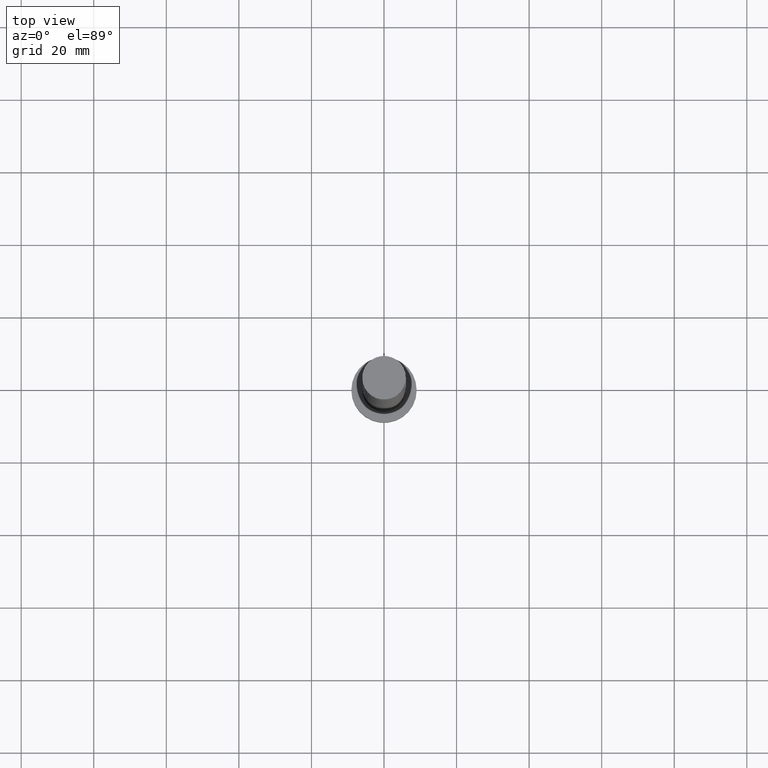
[diagram: clean part render]
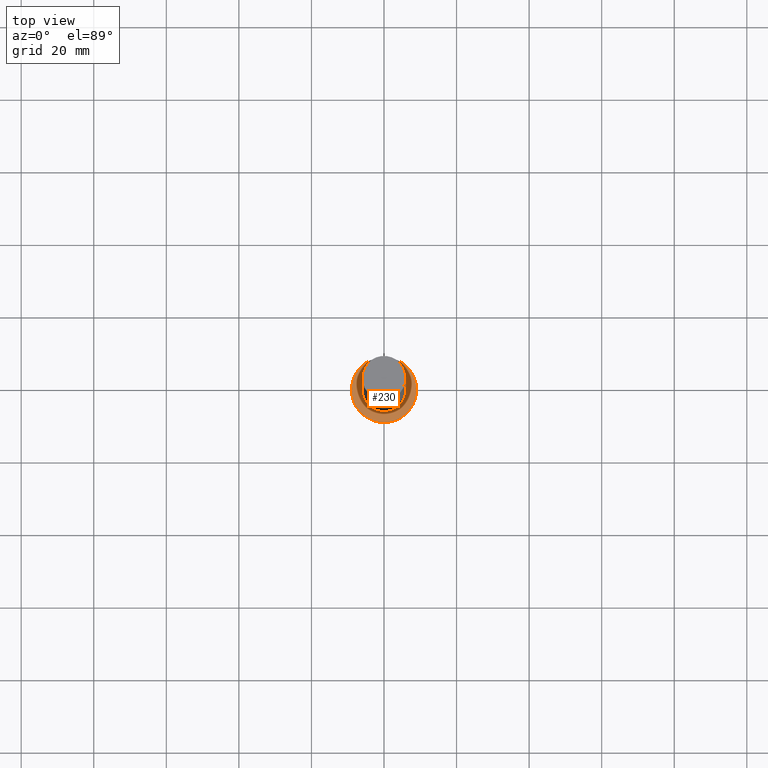
[diagram: same view with one face highlighted and labeled with its STEP entity id]
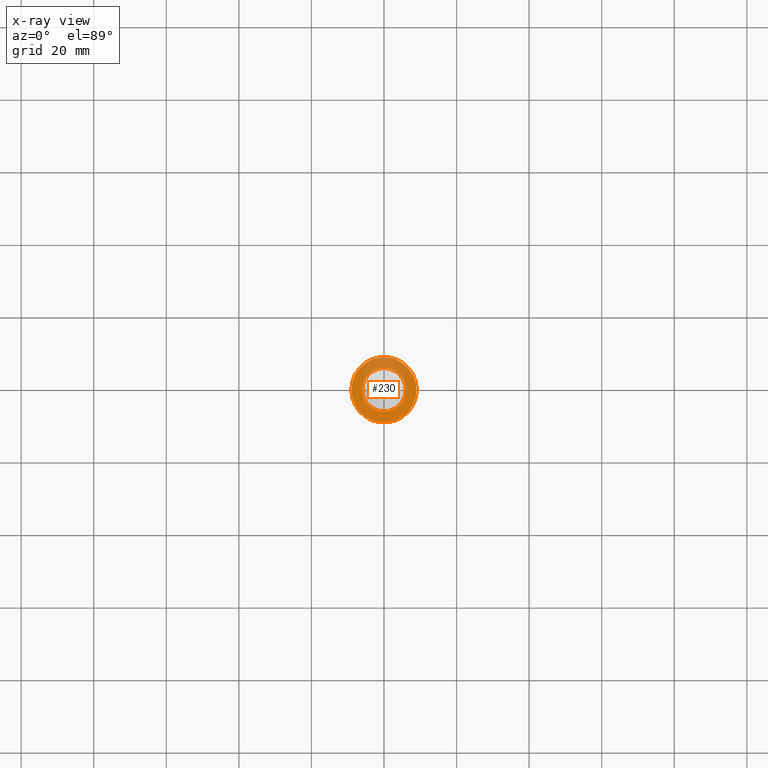
[diagram: x-ray of the same camera — body ghosted, the highlighted face saturated]
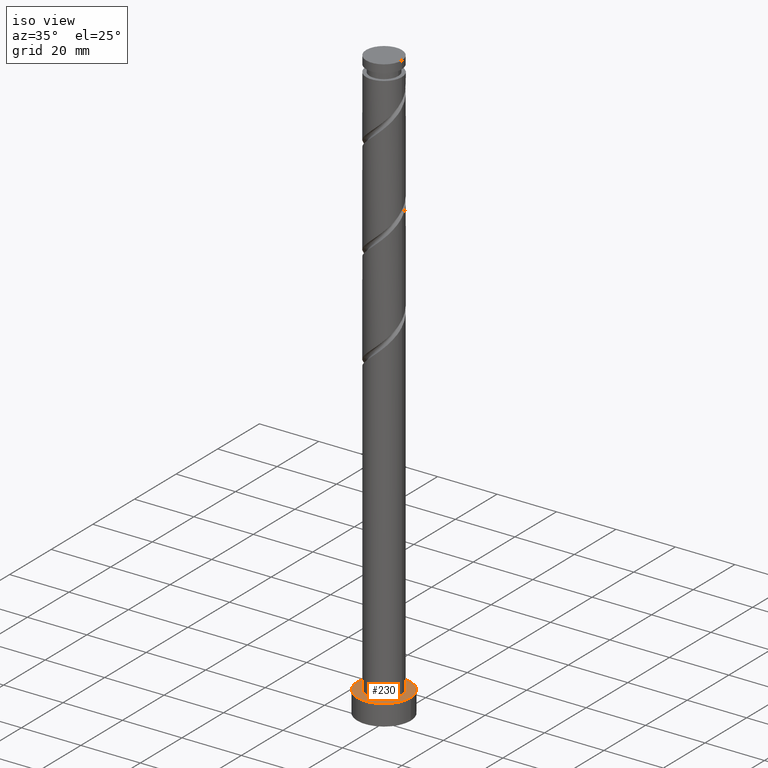
[diagram: same view with one face highlighted and labeled with its STEP entity id]
A machine part, top view. The second image highlights one B-rep face of the part: STEP entity #230.
The next image is the same camera in x-ray: the body ghosted, the highlighted face saturated — about 28% of this face is hidden behind the body in this view.
A second angle (iso view) of the same face is appended — the face is thin or edge-on in the first view.
In plain terms, the highlighted planar face has unit normal (0, 0, 1).
Its self-contained STEP definition (entity closure, byte-faithful):
#2 = CARTESIAN_POINT ( 'NONE',  ( 0.000000000000000000, 0.000000000000000000, 7.000000000000000000 ) ) ;
#64 = DIRECTION ( 'NONE',  ( 1.000000000000000000, 0.000000000000000000, 0.000000000000000000 ) ) ;
#65 = DIRECTION ( 'NONE',  ( 0.000000000000000000, 0.000000000000000000, 1.000000000000000000 ) ) ;
#107 = DIRECTION ( 'NONE',  ( 1.000000000000000000, 0.000000000000000000, 0.000000000000000000 ) ) ;
#146 = ORIENTED_EDGE ( 'NONE', *, *, #1597, .T. ) ;
#149 = AXIS2_PLACEMENT_3D ( 'NONE', #713, #65, #1677 ) ;
#153 = CARTESIAN_POINT ( 'NONE',  ( 6.000000000000000888, 7.347880794884120722E-16, 7.000000000000000000 ) ) ;
#160 = CIRCLE ( 'NONE', #1707, 6.000000000000000888 ) ;
#186 = CIRCLE ( 'NONE', #1519, 6.000000000000000888 ) ;
#230 = ADVANCED_FACE ( 'NONE', ( #702, #1654 ), #446, .T. ) ;
#346 = DIRECTION ( 'NONE',  ( 1.000000000000000000, 0.000000000000000000, 0.000000000000000000 ) ) ;
#446 = PLANE ( 'NONE',  #149 ) ;
#530 = EDGE_CURVE ( 'NONE', #1596, #830, #160, .T. ) ;
#548 = EDGE_LOOP ( 'NONE', ( #912, #651 ) ) ;
#636 = VERTEX_POINT ( 'NONE', #668 ) ;
#651 = ORIENTED_EDGE ( 'NONE', *, *, #1188, .F. ) ;
#668 = CARTESIAN_POINT ( 'NONE',  ( -9.000000000000000000, 0.000000000000000000, 7.000000000000000000 ) ) ;
#702 = FACE_BOUND ( 'NONE', #548, .T. ) ;
#713 = CARTESIAN_POINT ( 'NONE',  ( 0.000000000000000000, 0.000000000000000000, 7.000000000000000000 ) ) ;
#728 = DIRECTION ( 'NONE',  ( 0.000000000000000000, 0.000000000000000000, 1.000000000000000000 ) ) ;
#830 = VERTEX_POINT ( 'NONE', #153 ) ;
#885 = CARTESIAN_POINT ( 'NONE',  ( 0.000000000000000000, 0.000000000000000000, 7.000000000000000000 ) ) ;
#912 = ORIENTED_EDGE ( 'NONE', *, *, #530, .F. ) ;
#951 = DIRECTION ( 'NONE',  ( 0.000000000000000000, 0.000000000000000000, 1.000000000000000000 ) ) ;
#971 = DIRECTION ( 'NONE',  ( 0.000000000000000000, 0.000000000000000000, 1.000000000000000000 ) ) ;
#981 = DIRECTION ( 'NONE',  ( 1.000000000000000000, 0.000000000000000000, 0.000000000000000000 ) ) ;
#1009 = DIRECTION ( 'NONE',  ( 0.000000000000000000, 0.000000000000000000, 1.000000000000000000 ) ) ;
#1096 = CIRCLE ( 'NONE', #1209, 9.000000000000000000 ) ;
#1154 = ORIENTED_EDGE ( 'NONE', *, *, #1293, .T. ) ;
#1188 = EDGE_CURVE ( 'NONE', #830, #1596, #186, .T. ) ;
#1198 = CARTESIAN_POINT ( 'NONE',  ( 9.000000000000000000, 1.102182119232617714E-15, 7.000000000000000000 ) ) ;
#1209 = AXIS2_PLACEMENT_3D ( 'NONE', #1558, #728, #346 ) ;
#1250 = EDGE_LOOP ( 'NONE', ( #146, #1154 ) ) ;
#1290 = AXIS2_PLACEMENT_3D ( 'NONE', #2, #951, #107 ) ;
#1293 = EDGE_CURVE ( 'NONE', #1512, #636, #1096, .T. ) ;
#1405 = CARTESIAN_POINT ( 'NONE',  ( 0.000000000000000000, 0.000000000000000000, 7.000000000000000000 ) ) ;
#1512 = VERTEX_POINT ( 'NONE', #1198 ) ;
#1519 = AXIS2_PLACEMENT_3D ( 'NONE', #1405, #971, #981 ) ;
#1558 = CARTESIAN_POINT ( 'NONE',  ( 0.000000000000000000, 0.000000000000000000, 7.000000000000000000 ) ) ;
#1584 = CARTESIAN_POINT ( 'NONE',  ( -6.000000000000000888, 0.000000000000000000, 7.000000000000000000 ) ) ;
#1596 = VERTEX_POINT ( 'NONE', #1584 ) ;
#1597 = EDGE_CURVE ( 'NONE', #636, #1512, #1651, .T. ) ;
#1651 = CIRCLE ( 'NONE', #1290, 9.000000000000000000 ) ;
#1654 = FACE_OUTER_BOUND ( 'NONE', #1250, .T. ) ;
#1677 = DIRECTION ( 'NONE',  ( 1.000000000000000000, 0.000000000000000000, -0.000000000000000000 ) ) ;
#1707 = AXIS2_PLACEMENT_3D ( 'NONE', #885, #1009, #64 ) ;